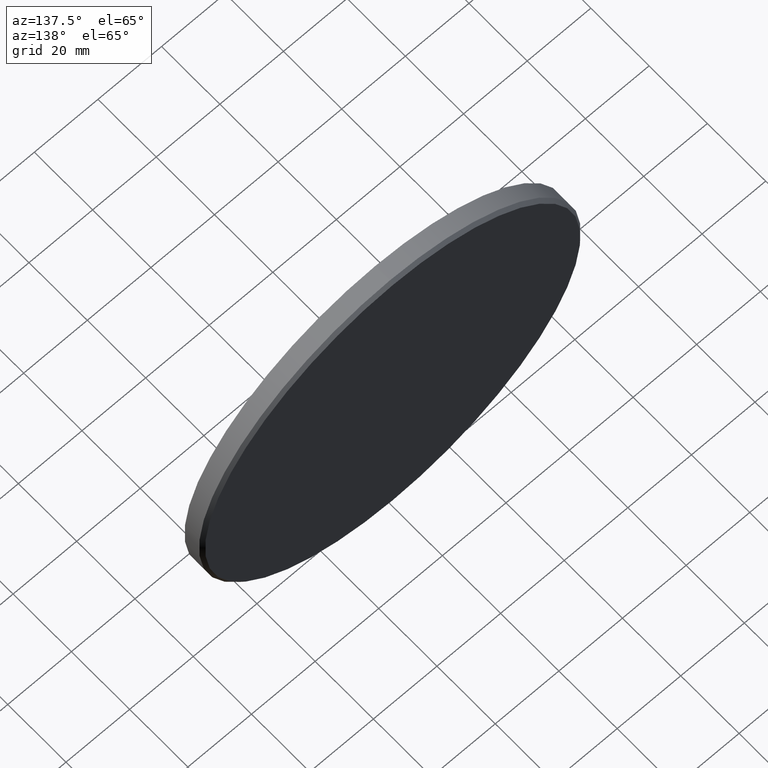
[diagram: clean part render]
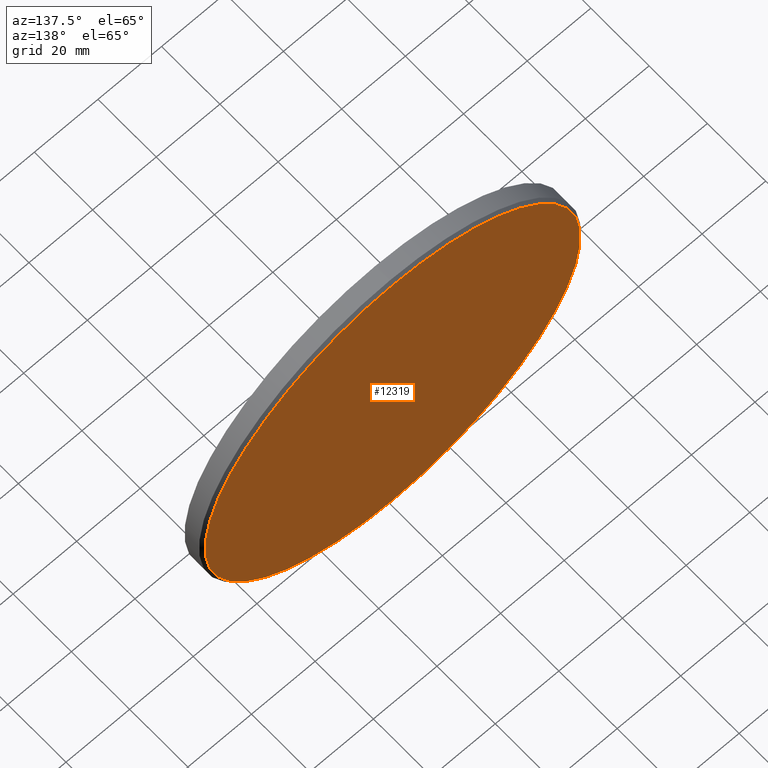
[diagram: same view with one face highlighted and labeled with its STEP entity id]
A machine part, auxiliary view. The second image highlights one B-rep face of the part: STEP entity #12319.
In plain terms, the highlighted planar face has unit normal (0, 1, 0).
Its self-contained STEP definition (entity closure, byte-faithful):
#652 = PLANE ( 'NONE',  #952 ) ;
#952 = AXIS2_PLACEMENT_3D ( 'NONE', #3853, #4999, #11403 ) ;
#1571 = CARTESIAN_POINT ( 'NONE',  ( 0.000000000000000000, 3.000000000000000000, -58.99999999999998579 ) ) ;
#2528 = CARTESIAN_POINT ( 'NONE',  ( 0.000000000000000000, 3.000000000000000000, 0.000000000000000000 ) ) ;
#2704 = AXIS2_PLACEMENT_3D ( 'NONE', #2528, #12466, #3713 ) ;
#3291 = DIRECTION ( 'NONE',  ( 0.000000000000000000, 1.000000000000000000, 0.000000000000000000 ) ) ;
#3405 = EDGE_CURVE ( 'NONE', #5687, #13883, #10805, .T. ) ;
#3462 = CIRCLE ( 'NONE', #7689, 58.99999999999998579 ) ;
#3713 = DIRECTION ( 'NONE',  ( 0.000000000000000000, 0.000000000000000000, 1.000000000000000000 ) ) ;
#3853 = CARTESIAN_POINT ( 'NONE',  ( 0.000000000000000000, 3.000000000000000000, 0.000000000000000000 ) ) ;
#4999 = DIRECTION ( 'NONE',  ( 0.000000000000000000, 1.000000000000000000, 0.000000000000000000 ) ) ;
#5299 = CARTESIAN_POINT ( 'NONE',  ( 0.000000000000000000, 3.000000000000000000, 0.000000000000000000 ) ) ;
#5687 = VERTEX_POINT ( 'NONE', #1571 ) ;
#6077 = EDGE_LOOP ( 'NONE', ( #10000, #7079 ) ) ;
#6737 = CARTESIAN_POINT ( 'NONE',  ( 7.286648454926750781E-15, 3.000000000000000000, 58.99999999999998579 ) ) ;
#7079 = ORIENTED_EDGE ( 'NONE', *, *, #9924, .T. ) ;
#7689 = AXIS2_PLACEMENT_3D ( 'NONE', #5299, #3291, #11016 ) ;
#9924 = EDGE_CURVE ( 'NONE', #13883, #5687, #3462, .T. ) ;
#10000 = ORIENTED_EDGE ( 'NONE', *, *, #3405, .T. ) ;
#10805 = CIRCLE ( 'NONE', #2704, 58.99999999999998579 ) ;
#11016 = DIRECTION ( 'NONE',  ( 0.000000000000000000, 0.000000000000000000, 1.000000000000000000 ) ) ;
#11403 = DIRECTION ( 'NONE',  ( 0.000000000000000000, -0.000000000000000000, 1.000000000000000000 ) ) ;
#12126 = FACE_OUTER_BOUND ( 'NONE', #6077, .T. ) ;
#12319 = ADVANCED_FACE ( 'NONE', ( #12126 ), #652, .T. ) ;
#12466 = DIRECTION ( 'NONE',  ( 0.000000000000000000, 1.000000000000000000, 0.000000000000000000 ) ) ;
#13883 = VERTEX_POINT ( 'NONE', #6737 ) ;